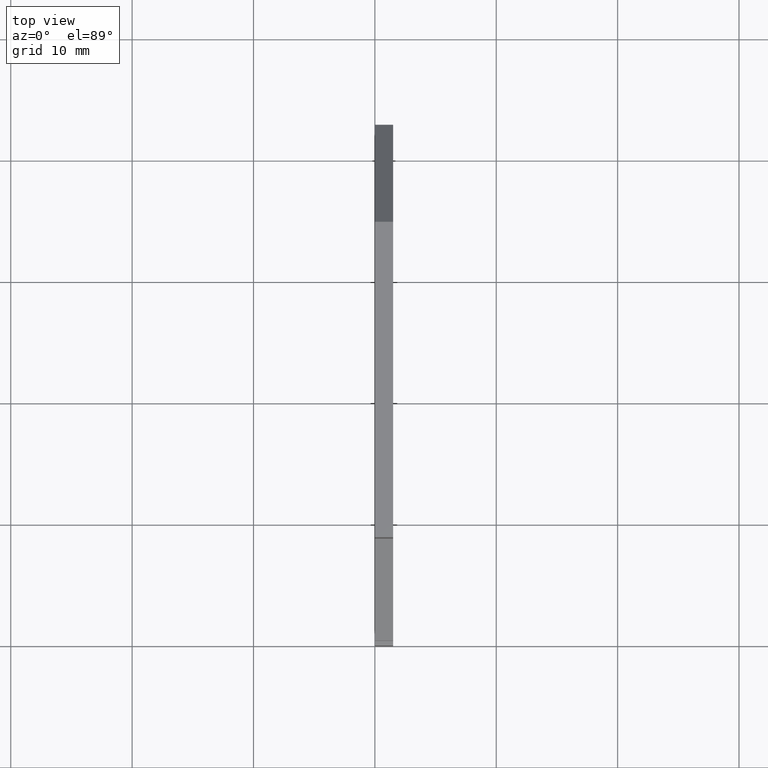
[diagram: clean part render]
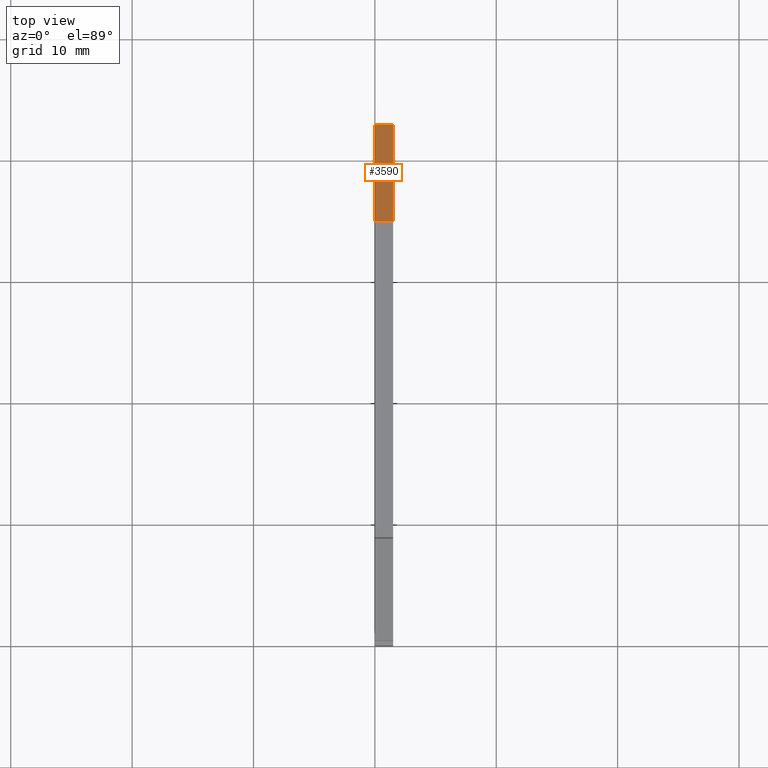
[diagram: same view with one face highlighted and labeled with its STEP entity id]
A machine part, top view. The second image highlights one B-rep face of the part: STEP entity #3590.
In plain terms, the highlighted planar face has unit normal (0, 0.7071, 0.7071).
Its self-contained STEP definition (entity closure, byte-faithful):
#590=CARTESIAN_POINT('',(32.9666321988984,76.3035915835004,-1.5));
#600=VERTEX_POINT('',#590);
#630=CARTESIAN_POINT('',(-43.336959384602,0.,-1.5));
#640=DIRECTION('',(0.707106781186547,0.707106781186548,0.));
#650=VECTOR('',#640,1.);
#660=LINE('',#630,#650);
#670=CARTESIAN_POINT('',(24.7166321988984,68.0535915835004,-1.5));
#680=VERTEX_POINT('',#670);
#690=EDGE_CURVE('',#680,#600,#660,.T.);
#2880=CARTESIAN_POINT('',(24.7166321988984,68.0535915835004,0.));
#2890=DIRECTION('',(0.,0.,1.));
#2900=VECTOR('',#2890,1.);
#2910=LINE('',#2880,#2900);
#2920=CARTESIAN_POINT('',(24.7166321988984,68.0535915835004,
5.06347253315185E-15));
#2930=VERTEX_POINT('',#2920);
#2940=EDGE_CURVE('',#680,#2930,#2910,.T.);
#3360=CARTESIAN_POINT('',(32.9666321988984,76.3035915835004,0.));
#3370=DIRECTION('',(-0.707106781186548,0.707106781186547,0.));
#3380=DIRECTION('',(0.707106781186547,0.707106781186548,0.));
#3390=AXIS2_PLACEMENT_3D('',#3360,#3370,#3380);
#3400=PLANE('',#3390);
#3410=ORIENTED_EDGE('',*,*,#2940,.T.);
#3420=ORIENTED_EDGE('',*,*,#690,.F.);
#3430=CARTESIAN_POINT('',(32.9666321988984,76.3035915835004,0.));
#3440=DIRECTION('',(0.,0.,-1.));
#3450=VECTOR('',#3440,1.);
#3460=LINE('',#3430,#3450);
#3470=CARTESIAN_POINT('',(32.9666321988984,76.3035915835004,
8.86450742699044E-16));
#3480=VERTEX_POINT('',#3470);
#3490=EDGE_CURVE('',#3480,#600,#3460,.T.);
#3500=ORIENTED_EDGE('',*,*,#3490,.T.);
#3510=CARTESIAN_POINT('',(-43.336959384602,0.,5.06347253315185E-15));
#3520=DIRECTION('',(-0.707106781186547,-0.707106781186548,0.));
#3530=VECTOR('',#3520,1.);
#3540=LINE('',#3510,#3530);
#3550=EDGE_CURVE('',#3480,#2930,#3540,.T.);
#3560=ORIENTED_EDGE('',*,*,#3550,.F.);
#3570=EDGE_LOOP('',(#3560,#3500,#3420,#3410));
#3580=FACE_OUTER_BOUND('',#3570,.T.);
#3590=ADVANCED_FACE('',(#3580),#3400,.T.);